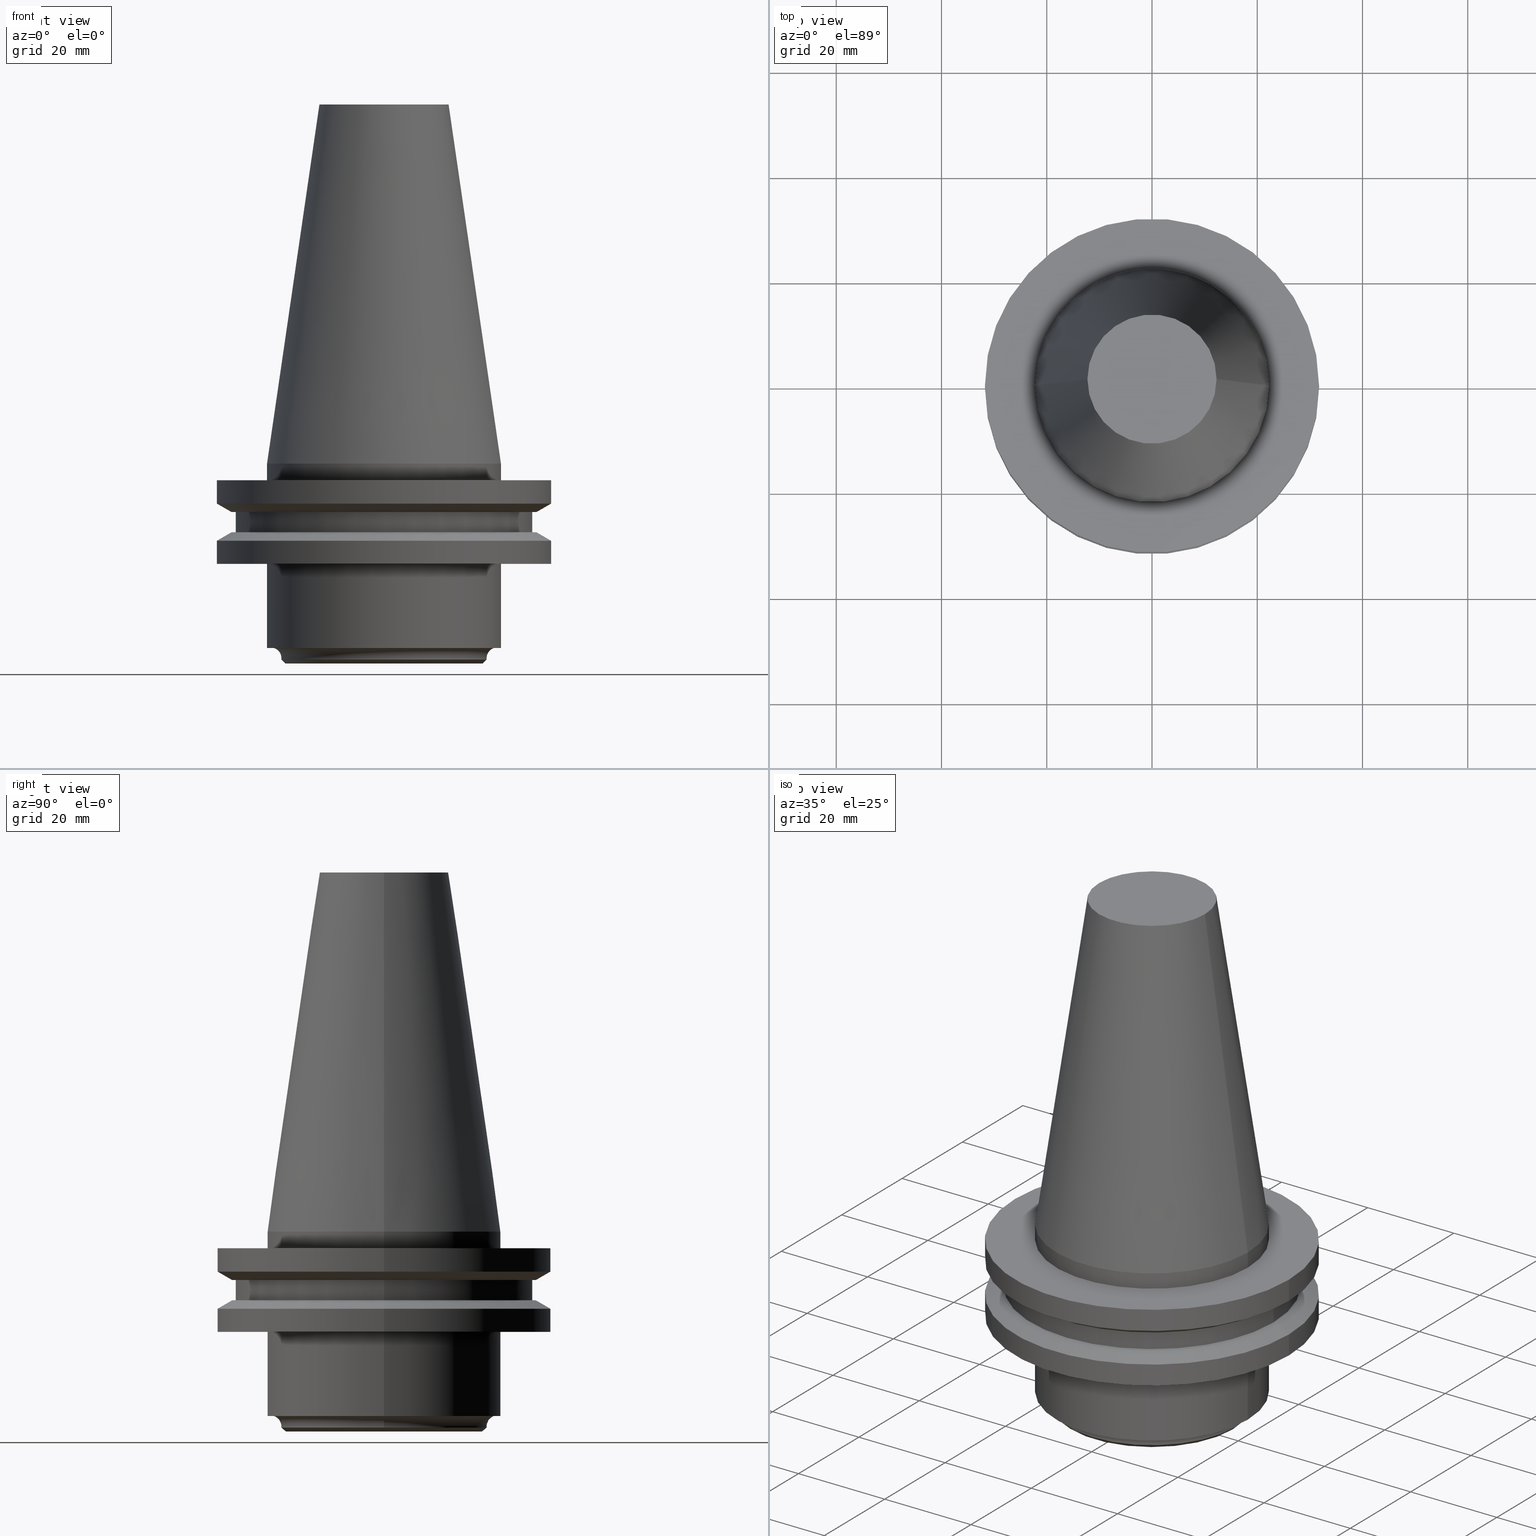
[diagram: canonical four-view strip — front | top / right | iso, engineering-drawing reading convention]
A machine part, canonical four-view strip (front | top / right | iso — engineering-drawing reading convention). The complete STEP part file that produces these views, byte-faithful:
ISO-10303-21;
HEADER;
FILE_DESCRIPTION (( 'STEP AP203' ),
    '1' );
FILE_NAME ('11_326_440.stp',
    '2022-03-07T22:19:01',
    ( '' ),
    ( '' ),
    'SwSTEP 2.0',
    'SolidWorks 2021',
    '' );
FILE_SCHEMA (( 'CONFIG_CONTROL_DESIGN' ));
ENDSEC;

DATA;
#1 = CARTESIAN_POINT ( 'NONE',  ( 0.000000000000000000, 0.000000000000000000, -9.205000000000005400 ) ) ;
#2 = ORIENTED_EDGE ( 'NONE', *, *, #641, .T. ) ;
#3 = DIRECTION ( 'NONE',  ( 1.000000000000000000, 0.000000000000000000, 0.000000000000000000 ) ) ;
#4 = AXIS2_PLACEMENT_3D ( 'NONE', #658, #340, #598 ) ;
#5 = FACE_OUTER_BOUND ( 'NONE', #678, .T. ) ;
#6 = ORIENTED_EDGE ( 'NONE', *, *, #641, .F. ) ;
#7 = SECURITY_CLASSIFICATION ( '', '', #748 ) ;
#8 = DIRECTION ( 'NONE',  ( -0.000000000000000000, -0.000000000000000000, 1.000000000000000000 ) ) ;
#9 = CARTESIAN_POINT ( 'NONE',  ( 0.000000000000000000, 0.000000000000000000, -9.205000000000005400 ) ) ;
#10 = EDGE_CURVE ( 'NONE', #809, #328, #818, .T. ) ;
#11 = ORIENTED_EDGE ( 'NONE', *, *, #524, .F. ) ;
#12 = APPLICATION_CONTEXT ( 'configuration controlled 3d designs of mechanical parts and assemblies' ) ;
#13 = CARTESIAN_POINT ( 'NONE',  ( 0.000000000000000000, 0.000000000000000000, -7.605276606597335842 ) ) ;
#14 = DIRECTION ( 'NONE',  ( 1.000000000000000000, 0.000000000000000000, 0.000000000000000000 ) ) ;
#15 = EDGE_LOOP ( 'NONE', ( #261, #74, #19, #707 ) ) ;
#16 = EDGE_LOOP ( 'NONE', ( #51, #804, #701, #640 ) ) ;
#17 = DIRECTION ( 'NONE',  ( -0.000000000000000000, -0.000000000000000000, 1.000000000000000000 ) ) ;
#18 = AXIS2_PLACEMENT_3D ( 'NONE', #421, #677, #223 ) ;
#19 = ORIENTED_EDGE ( 'NONE', *, *, #21, .T. ) ;
#20 = VECTOR ( 'NONE', #652, 1000.000000000000000 ) ;
#21 = EDGE_CURVE ( 'NONE', #490, #739, #482, .T. ) ;
#22 = DIRECTION ( 'NONE',  ( 1.000000000000000000, 0.000000000000000000, 0.000000000000000000 ) ) ;
#23 =( LENGTH_UNIT ( ) NAMED_UNIT ( * ) SI_UNIT ( .MILLI., .METRE. ) );
#24 = CARTESIAN_POINT ( 'NONE',  ( 0.000000000000000000, 0.000000000000000000, -36.94999999999999574 ) ) ;
#25 = PRODUCT_RELATED_PRODUCT_CATEGORY ( 'detail', '', ( #549 ) ) ;
#26 = DIRECTION ( 'NONE',  ( 1.000000000000000000, 0.000000000000000000, 0.000000000000000000 ) ) ;
#27 = ORIENTED_EDGE ( 'NONE', *, *, #319, .F. ) ;
#28 = VERTEX_POINT ( 'NONE', #278 ) ;
#29 = CARTESIAN_POINT ( 'NONE',  ( -31.74999999999999289, 3.888253587292845687E-15, -19.04999999999999716 ) ) ;
#30 = DIRECTION ( 'NONE',  ( -0.000000000000000000, -0.000000000000000000, 1.000000000000000000 ) ) ;
#31 = CARTESIAN_POINT ( 'NONE',  ( -18.75000000000000000, 2.296212748401287183E-15, -38.00000000000000000 ) ) ;
#32 = ORIENTED_EDGE ( 'NONE', *, *, #296, .F. ) ;
#33 = AXIS2_PLACEMENT_3D ( 'NONE', #451, #696, #3 ) ;
#34 = CARTESIAN_POINT ( 'NONE',  ( -28.97919780457007732, 3.548928183322474856E-15, -9.205000000000005400 ) ) ;
#35 = AXIS2_PLACEMENT_3D ( 'NONE', #225, #346, #290 ) ;
#36 = DIRECTION ( 'NONE',  ( -0.000000000000000000, -0.000000000000000000, 1.000000000000000000 ) ) ;
#37 = ADVANCED_FACE ( 'NONE', ( #41 ), #407, .T. ) ;
#38 = ORIENTED_EDGE ( 'NONE', *, *, #10, .F. ) ;
#39 = FACE_OUTER_BOUND ( 'NONE', #681, .T. ) ;
#40 = DIRECTION ( 'NONE',  ( -0.000000000000000000, -0.000000000000000000, 1.000000000000000000 ) ) ;
#41 = FACE_OUTER_BOUND ( 'NONE', #474, .T. ) ;
#42 = EDGE_LOOP ( 'NONE', ( #415, #545, #260, #322 ) ) ;
#43 = PERSON_AND_ORGANIZATION ( #186, #394 ) ;
#44 = CARTESIAN_POINT ( 'NONE',  ( 0.000000000000000000, 0.000000000000000000, -3.174999999999997158 ) ) ;
#45 = CONICAL_SURFACE ( 'NONE', #719, 18.75000000000000000, 0.7853981633974437271 ) ;
#46 = AXIS2_PLACEMENT_3D ( 'NONE', #181, #692, #14 ) ;
#47 = EDGE_LOOP ( 'NONE', ( #784, #547, #291, #315 ) ) ;
#48 = ADVANCED_FACE ( 'NONE', ( #793 ), #342, .F. ) ;
#49 = CIRCLE ( 'NONE', #775, 22.22500000000000142 ) ;
#50 = CARTESIAN_POINT ( 'NONE',  ( -31.75000000000000000, 3.888253587292846476E-15, -3.174999999999997158 ) ) ;
#51 = ORIENTED_EDGE ( 'NONE', *, *, #735, .F. ) ;
#52 = EDGE_CURVE ( 'NONE', #328, #809, #323, .T. ) ;
#53 = CARTESIAN_POINT ( 'NONE',  ( 0.000000000000000000, 31.75000000000000000, -3.174999999999993605 ) ) ;
#54 = APPROVAL_STATUS ( 'not_yet_approved' ) ;
#55 = CARTESIAN_POINT ( 'NONE',  ( 19.49999999999999289, 0.000000000000000000, -37.25000000000000000 ) ) ;
#56 = CC_DESIGN_APPROVAL ( #111, ( #433 ) ) ;
#57 = CARTESIAN_POINT ( 'NONE',  ( 0.000000000000000000, 0.000000000000000000, 68.25000000000000000 ) ) ;
#58 = EDGE_CURVE ( 'NONE', #490, #144, #420, .T. ) ;
#59 = VERTEX_POINT ( 'NONE', #347 ) ;
#60 = CARTESIAN_POINT ( 'NONE',  ( 0.000000000000000000, 0.000000000000000000, -14.65472339340266572 ) ) ;
#61 = DIRECTION ( 'NONE',  ( -0.000000000000000000, -0.000000000000000000, 1.000000000000000000 ) ) ;
#62 = DIRECTION ( 'NONE',  ( 1.000000000000000000, 0.000000000000000000, 0.000000000000000000 ) ) ;
#63 = DIRECTION ( 'NONE',  ( 1.000000000000000000, 0.000000000000000000, 0.000000000000000000 ) ) ;
#64 = ORIENTED_EDGE ( 'NONE', *, *, #105, .T. ) ;
#65 = AXIS2_PLACEMENT_3D ( 'NONE', #197, #317, #249 ) ;
#66 = DIRECTION ( 'NONE',  ( 0.000000000000000000, -0.000000000000000000, 1.000000000000000000 ) ) ;
#67 = EDGE_CURVE ( 'NONE', #425, #579, #738, .T. ) ;
#68 = DIRECTION ( 'NONE',  ( 0.000000000000000000, -0.000000000000000000, 1.000000000000000000 ) ) ;
#69 = VERTEX_POINT ( 'NONE', #101 ) ;
#70 = DIRECTION ( 'NONE',  ( -0.000000000000000000, -0.000000000000000000, 1.000000000000000000 ) ) ;
#71 = DIRECTION ( 'NONE',  ( 1.000000000000000000, 0.000000000000000000, 0.000000000000000000 ) ) ;
#72 = CARTESIAN_POINT ( 'NONE',  ( 0.000000000000000000, 0.000000000000000000, 68.25000000000000000 ) ) ;
#73 = ADVANCED_FACE ( 'NONE', ( #732 ), #537, .T. ) ;
#74 = ORIENTED_EDGE ( 'NONE', *, *, #442, .T. ) ;
#75 = ORIENTED_EDGE ( 'NONE', *, *, #759, .T. ) ;
#76 = CARTESIAN_POINT ( 'NONE',  ( -22.22500000000000142, 0.000000000000000000, 0.000000000000000000 ) ) ;
#77 = EDGE_CURVE ( 'NONE', #220, #650, #473, .T. ) ;
#78 = CARTESIAN_POINT ( 'NONE',  ( 0.000000000000000000, 0.000000000000000000, -37.25000000000000000 ) ) ;
#79 = ORIENTED_EDGE ( 'NONE', *, *, #816, .F. ) ;
#80 = EDGE_CURVE ( 'NONE', #495, #650, #657, .T. ) ;
#81 = LOCAL_TIME ( 16, 19, 1.000000000000000000, #375 ) ;
#82 = ORIENTED_EDGE ( 'NONE', *, *, #605, .T. ) ;
#83 = CARTESIAN_POINT ( 'NONE',  ( 18.75000000000000000, 0.000000000000000000, -38.00000000000000000 ) ) ;
#84 = APPLICATION_PROTOCOL_DEFINITION ( 'international standard', 'config_control_design', 1994, #466 ) ;
#85 = ORIENTED_EDGE ( 'NONE', *, *, #191, .F. ) ;
#86 = EDGE_LOOP ( 'NONE', ( #449, #362 ) ) ;
#87 = DIRECTION ( 'NONE',  ( 1.000000000000000000, 0.000000000000000000, 0.000000000000000000 ) ) ;
#88 = DIRECTION ( 'NONE',  ( -0.000000000000000000, -0.000000000000000000, 1.000000000000000000 ) ) ;
#89 = DIRECTION ( 'NONE',  ( 1.000000000000000000, 0.000000000000000000, 0.000000000000000000 ) ) ;
#90 = VERTEX_POINT ( 'NONE', #618 ) ;
#91 = FACE_OUTER_BOUND ( 'NONE', #436, .T. ) ;
#92 = LINE ( 'NONE', #294, #202 ) ;
#93 = AXIS2_PLACEMENT_3D ( 'NONE', #708, #281, #397 ) ;
#94 = EDGE_CURVE ( 'NONE', #361, #739, #594, .T. ) ;
#95 = DIRECTION ( 'NONE',  ( -0.000000000000000000, -0.000000000000000000, 1.000000000000000000 ) ) ;
#96 = VERTEX_POINT ( 'NONE', #218 ) ;
#97 = FACE_OUTER_BOUND ( 'NONE', #47, .T. ) ;
#98 = AXIS2_PLACEMENT_3D ( 'NONE', #713, #142, #62 ) ;
#99 = CARTESIAN_POINT ( 'NONE',  ( 28.97919780457007732, 0.000000000000000000, -9.205000000000005400 ) ) ;
#100 = CIRCLE ( 'NONE', #35, 31.74999999999999289 ) ;
#101 = CARTESIAN_POINT ( 'NONE',  ( -28.17999999999999972, 3.451054679997241634E-15, -13.05499999999999794 ) ) ;
#102 = ORIENTED_EDGE ( 'NONE', *, *, #442, .F. ) ;
#103 = DATE_TIME_ROLE ( 'classification_date' ) ;
#104 = EDGE_LOOP ( 'NONE', ( #411, #329, #386, #32 ) ) ;
#105 = EDGE_CURVE ( 'NONE', #645, #106, #606, .T. ) ;
#106 = VERTEX_POINT ( 'NONE', #351 ) ;
#107 = COORDINATED_UNIVERSAL_TIME_OFFSET ( 6, 0, .BEHIND. ) ;
#108 = AXIS2_PLACEMENT_3D ( 'NONE', #343, #208, #334 ) ;
#109 = CARTESIAN_POINT ( 'NONE',  ( 0.000000000000000000, 0.000000000000000000, 0.000000000000000000 ) ) ;
#110 = VECTOR ( 'NONE', #189, 1000.000000000000000 ) ;
#111 = APPROVAL ( #727, 'UNSPECIFIED' ) ;
#112 = ORIENTED_EDGE ( 'NONE', *, *, #132, .F. ) ;
#113 = CIRCLE ( 'NONE', #33, 12.27178102086201150 ) ;
#114 = CC_DESIGN_APPROVAL ( #231, ( #7 ) ) ;
#115 = FACE_BOUND ( 'NONE', #655, .T. ) ;
#116 = DIRECTION ( 'NONE',  ( -1.000000000000000000, 0.000000000000000000, -0.000000000000000000 ) ) ;
#117 = ORIENTED_EDGE ( 'NONE', *, *, #401, .F. ) ;
#118 = CALENDAR_DATE ( 2022, 7, 3 ) ;
#119 = DIRECTION ( 'NONE',  ( -1.000000000000000000, 0.000000000000000000, 0.000000000000000000 ) ) ;
#120 = EDGE_CURVE ( 'NONE', #280, #178, #406, .T. ) ;
#121 = AXIS2_PLACEMENT_3D ( 'NONE', #44, #36, #601 ) ;
#122 = LINE ( 'NONE', #129, #110 ) ;
#123 = PLANE ( 'NONE',  #381 ) ;
#124 = CARTESIAN_POINT ( 'NONE',  ( -22.22500000000000142, 2.721777511104992849E-15, -19.04999999999999716 ) ) ;
#125 = FACE_OUTER_BOUND ( 'NONE', #104, .T. ) ;
#126 = EDGE_CURVE ( 'NONE', #579, #207, #326, .T. ) ;
#127 = CARTESIAN_POINT ( 'NONE',  ( 0.000000000000000000, 22.22500000000000142, -35.04999999999999716 ) ) ;
#128 = DIRECTION ( 'NONE',  ( -0.000000000000000000, -0.000000000000000000, 1.000000000000000000 ) ) ;
#129 = CARTESIAN_POINT ( 'NONE',  ( -28.17999999999999972, 3.451054679997241634E-15, 68.25000000000000000 ) ) ;
#130 = EDGE_LOOP ( 'NONE', ( #560, #666, #306, #519 ) ) ;
#131 = AXIS2_PLACEMENT_3D ( 'NONE', #438, #518, #134 ) ;
#132 = EDGE_CURVE ( 'NONE', #470, #483, #285, .T. ) ;
#133 = CARTESIAN_POINT ( 'NONE',  ( 31.75000000000000000, 0.000000000000000000, -3.174999999999997158 ) ) ;
#134 = DIRECTION ( 'NONE',  ( 1.000000000000000000, 0.000000000000000000, 0.000000000000000000 ) ) ;
#135 = ORIENTED_EDGE ( 'NONE', *, *, #710, .F. ) ;
#136 = CIRCLE ( 'NONE', #761, 28.17999999999999972 ) ;
#137 = VERTEX_POINT ( 'NONE', #235 ) ;
#138 = CYLINDRICAL_SURFACE ( 'NONE', #93, 31.75000000000000000 ) ;
#139 = CARTESIAN_POINT ( 'NONE',  ( 19.49999999999999289, 0.000000000000000000, 0.000000000000000000 ) ) ;
#140 = ORIENTED_EDGE ( 'NONE', *, *, #338, .T. ) ;
#141 = DIRECTION ( 'NONE',  ( 1.000000000000000000, 0.000000000000000000, 0.000000000000000000 ) ) ;
#142 = DIRECTION ( 'NONE',  ( -0.000000000000000000, -0.000000000000000000, 1.000000000000000000 ) ) ;
#143 = EDGE_CURVE ( 'NONE', #373, #495, #324, .T. ) ;
#144 = VERTEX_POINT ( 'NONE', #320 ) ;
#145 = EDGE_LOOP ( 'NONE', ( #491, #79 ) ) ;
#146 = DIRECTION ( 'NONE',  ( 1.000000000000000000, 0.000000000000000000, 0.000000000000000000 ) ) ;
#147 = CIRCLE ( 'NONE', #4, 31.74999999999999289 ) ;
#148 = AXIS2_PLACEMENT_3D ( 'NONE', #580, #196, #427 ) ;
#149 = AXIS2_PLACEMENT_3D ( 'NONE', #413, #222, #357 ) ;
#150 = DIRECTION ( 'NONE',  ( -0.8660254037844389297, 1.060575238724907285E-16, 0.4999999999999995004 ) ) ;
#151 = CARTESIAN_POINT ( 'NONE',  ( 0.000000000000000000, 0.000000000000000000, 68.25000000000000000 ) ) ;
#152 = AXIS2_PLACEMENT_3D ( 'NONE', #632, #571, #825 ) ;
#153 = ORIENTED_EDGE ( 'NONE', *, *, #724, .F. ) ;
#154 = EDGE_CURVE ( 'NONE', #739, #361, #434, .T. ) ;
#155 = ORIENTED_EDGE ( 'NONE', *, *, #94, .T. ) ;
#156 = CARTESIAN_POINT ( 'NONE',  ( 0.000000000000000000, 0.000000000000000000, 68.25000000000000000 ) ) ;
#157 = DIRECTION ( 'NONE',  ( -0.000000000000000000, -0.000000000000000000, 1.000000000000000000 ) ) ;
#158 = DIRECTION ( 'NONE',  ( -0.000000000000000000, -0.000000000000000000, 1.000000000000000000 ) ) ;
#159 = ORIENTED_EDGE ( 'NONE', *, *, #52, .T. ) ;
#160 = FACE_OUTER_BOUND ( 'NONE', #679, .T. ) ;
#161 = DIRECTION ( 'NONE',  ( 1.000000000000000000, 0.000000000000000000, 0.000000000000000000 ) ) ;
#162 = COORDINATED_UNIVERSAL_TIME_OFFSET ( 6, 0, .BEHIND. ) ;
#163 = AXIS2_PLACEMENT_3D ( 'NONE', #595, #463, #790 ) ;
#164 = ORIENTED_EDGE ( 'NONE', *, *, #724, .T. ) ;
#165 = EDGE_LOOP ( 'NONE', ( #672, #523, #117, #170 ) ) ;
#166 = PRODUCT_DEFINITION_FORMATION_WITH_SPECIFIED_SOURCE ( 'ANY', '', #549, .NOT_KNOWN. ) ;
#167 = ADVANCED_FACE ( 'NONE', ( #765 ), #367, .F. ) ;
#168 = CARTESIAN_POINT ( 'NONE',  ( 22.22500000000000142, 0.000000000000000000, 68.25000000000000000 ) ) ;
#169 = CONICAL_SURFACE ( 'NONE', #266, 22.22500000000000142, 0.1448138465474119174 ) ;
#170 = ORIENTED_EDGE ( 'NONE', *, *, #747, .F. ) ;
#171 = COORDINATED_UNIVERSAL_TIME_OFFSET ( 6, 0, .BEHIND. ) ;
#172 = CARTESIAN_POINT ( 'NONE',  ( -31.75000000000000000, 3.888253587292846476E-15, 68.25000000000000000 ) ) ;
#173 = CC_DESIGN_DATE_AND_TIME_ASSIGNMENT ( #740, #621, ( #433 ) ) ;
#174 = ORIENTED_EDGE ( 'NONE', *, *, #191, .T. ) ;
#175 = LINE ( 'NONE', #172, #200 ) ;
#176 = VECTOR ( 'NONE', #382, 1000.000000000000000 ) ;
#177 = CYLINDRICAL_SURFACE ( 'NONE', #498, 31.75000000000000000 ) ;
#178 = VERTEX_POINT ( 'NONE', #575 ) ;
#179 = EDGE_CURVE ( 'NONE', #137, #620, #387, .T. ) ;
#180 = CALENDAR_DATE ( 2022, 7, 3 ) ;
#181 = CARTESIAN_POINT ( 'NONE',  ( 0.000000000000000000, 0.000000000000000000, 68.25000000000000000 ) ) ;
#182 = DIRECTION ( 'NONE',  ( 1.000000000000000000, 0.000000000000000000, 0.000000000000000000 ) ) ;
#183 = DIRECTION ( 'NONE',  ( 1.000000000000000000, 0.000000000000000000, 0.000000000000000000 ) ) ;
#184 = CARTESIAN_POINT ( 'NONE',  ( 0.000000000000000000, 0.000000000000000000, -35.04999999999999716 ) ) ;
#185 = AXIS2_PLACEMENT_3D ( 'NONE', #24, #726, #349 ) ;
#186 = PERSON ( 'UNSPECIFIED', 'UNSPECIFIED', 'UNSPECIFIED', ('UNSPECIFIED'), ('UNSPECIFIED'), ('UNSPECIFIED') ) ;
#187 = AXIS2_PLACEMENT_3D ( 'NONE', #477, #414, #550 ) ;
#188 = DIRECTION ( 'NONE',  ( -0.000000000000000000, -0.000000000000000000, 1.000000000000000000 ) ) ;
#189 = DIRECTION ( 'NONE',  ( -0.000000000000000000, -0.000000000000000000, 1.000000000000000000 ) ) ;
#190 = CIRCLE ( 'NONE', #408, 28.97919780457008088 ) ;
#191 = EDGE_CURVE ( 'NONE', #521, #203, #113, .T. ) ;
#192 = CARTESIAN_POINT ( 'NONE',  ( 18.75000000000000000, 0.000000000000000000, -38.00000000000000000 ) ) ;
#193 = CARTESIAN_POINT ( 'NONE',  ( 22.22500000000000142, 0.000000000000000000, -19.04999999999999716 ) ) ;
#194 = VERTEX_POINT ( 'NONE', #133 ) ;
#195 = CC_DESIGN_PERSON_AND_ORGANIZATION_ASSIGNMENT ( #718, #670, ( #549 ) ) ;
#196 = DIRECTION ( 'NONE',  ( -0.000000000000000000, -0.000000000000000000, 1.000000000000000000 ) ) ;
#197 = CARTESIAN_POINT ( 'NONE',  ( 0.000000000000000000, 0.000000000000000000, -38.00000000000000000 ) ) ;
#198 = ORIENTED_EDGE ( 'NONE', *, *, #493, .F. ) ;
#199 = DIRECTION ( 'NONE',  ( 0.1443082272672999711, 1.767266086135276757E-17, -0.9895327864921755756 ) ) ;
#200 = VECTOR ( 'NONE', #637, 1000.000000000000000 ) ;
#201 = ORIENTED_EDGE ( 'NONE', *, *, #80, .F. ) ;
#202 = VECTOR ( 'NONE', #548, 1000.000000000000000 ) ;
#203 = VERTEX_POINT ( 'NONE', #384 ) ;
#204 = DIRECTION ( 'NONE',  ( 1.000000000000000000, 0.000000000000000000, 0.000000000000000000 ) ) ;
#205 = ADVANCED_FACE ( 'NONE', ( #745 ), #497, .T. ) ;
#206 = FACE_BOUND ( 'NONE', #86, .T. ) ;
#207 = VERTEX_POINT ( 'NONE', #124 ) ;
#208 = DIRECTION ( 'NONE',  ( -0.000000000000000000, -0.000000000000000000, 1.000000000000000000 ) ) ;
#209 = VERTEX_POINT ( 'NONE', #50 ) ;
#210 = CARTESIAN_POINT ( 'NONE',  ( 22.22500000000000142, 2.721777511104992849E-15, 0.000000000000000000 ) ) ;
#211 = CIRCLE ( 'NONE', #65, 18.75000000000000000 ) ;
#212 =( NAMED_UNIT ( * ) SI_UNIT ( $, .STERADIAN. ) SOLID_ANGLE_UNIT ( ) );
#213 = DIRECTION ( 'NONE',  ( -0.000000000000000000, -0.000000000000000000, 1.000000000000000000 ) ) ;
#214 = EDGE_CURVE ( 'NONE', #333, #650, #175, .T. ) ;
#215 = CC_DESIGN_SECURITY_CLASSIFICATION ( #7, ( #166 ) ) ;
#216 = CARTESIAN_POINT ( 'NONE',  ( -22.22500000000000142, 0.000000000000000000, 0.000000000000000000 ) ) ;
#217 = CARTESIAN_POINT ( 'NONE',  ( 0.000000000000000000, 0.000000000000000000, 0.000000000000000000 ) ) ;
#218 = CARTESIAN_POINT ( 'NONE',  ( 28.97919780457007732, 0.000000000000000000, -9.205000000000005400 ) ) ;
#219 = EDGE_CURVE ( 'NONE', #207, #579, #311, .T. ) ;
#220 = VERTEX_POINT ( 'NONE', #682 ) ;
#221 = DIRECTION ( 'NONE',  ( 1.000000000000000000, 0.000000000000000000, 0.000000000000000000 ) ) ;
#222 = DIRECTION ( 'NONE',  ( 0.000000000000000000, -1.000000000000000000, 0.000000000000000000 ) ) ;
#223 = DIRECTION ( 'NONE',  ( 1.000000000000000000, 0.000000000000000000, 0.000000000000000000 ) ) ;
#224 = ORIENTED_EDGE ( 'NONE', *, *, #80, .T. ) ;
#225 = CARTESIAN_POINT ( 'NONE',  ( 0.000000000000000000, 0.000000000000000000, -19.04999999999999716 ) ) ;
#226 = VECTOR ( 'NONE', #475, 1000.000000000000114 ) ;
#227 = DIRECTION ( 'NONE',  ( -0.000000000000000000, -0.000000000000000000, 1.000000000000000000 ) ) ;
#228 = EDGE_LOOP ( 'NONE', ( #75, #64, #297, #462 ) ) ;
#229 = APPROVAL_PERSON_ORGANIZATION ( #405, #111, #481 ) ;
#230 = COORDINATED_UNIVERSAL_TIME_OFFSET ( 6, 0, .BEHIND. ) ;
#231 = APPROVAL ( #54, 'UNSPECIFIED' ) ;
#232 = CARTESIAN_POINT ( 'NONE',  ( 0.000000000000000000, 0.000000000000000000, -14.65472339340266572 ) ) ;
#233 = ORIENTED_EDGE ( 'NONE', *, *, #754, .T. ) ;
#234 = CALENDAR_DATE ( 2022, 7, 3 ) ;
#235 = CARTESIAN_POINT ( 'NONE',  ( 28.17999999999999972, 0.000000000000000000, -13.05499999999999794 ) ) ;
#236 = EDGE_LOOP ( 'NONE', ( #82, #456 ) ) ;
#237 = ADVANCED_BREP_SHAPE_REPRESENTATION ( '11_326_440', ( #585, #327 ), #597 ) ;
#238 = APPROVAL_STATUS ( 'not_yet_approved' ) ;
#239 = CIRCLE ( 'NONE', #788, 12.27178102086201150 ) ;
#240 = DIRECTION ( 'NONE',  ( 1.000000000000000000, 0.000000000000000000, 0.000000000000000000 ) ) ;
#241 = EDGE_CURVE ( 'NONE', #194, #209, #568, .T. ) ;
#242 = APPROVAL_DATE_TIME ( #488, #231 ) ;
#243 = VECTOR ( 'NONE', #460, 1000.000000000000000 ) ;
#244 = DIRECTION ( 'NONE',  ( -0.000000000000000000, -0.000000000000000000, 1.000000000000000000 ) ) ;
#245 = FACE_OUTER_BOUND ( 'NONE', #165, .T. ) ;
#246 = DIRECTION ( 'NONE',  ( -0.000000000000000000, -0.000000000000000000, 1.000000000000000000 ) ) ;
#247 = PLANE ( 'NONE',  #251 ) ;
#248 = ADVANCED_FACE ( 'NONE', ( #492 ), #431, .T. ) ;
#249 = DIRECTION ( 'NONE',  ( 1.000000000000000000, 0.000000000000000000, 0.000000000000000000 ) ) ;
#250 = CARTESIAN_POINT ( 'NONE',  ( 0.000000000000000000, 0.000000000000000000, -13.05499999999999794 ) ) ;
#251 = AXIS2_PLACEMENT_3D ( 'NONE', #127, #66, #534 ) ;
#252 = AXIS2_PLACEMENT_3D ( 'NONE', #502, #758, #755 ) ;
#253 = CARTESIAN_POINT ( 'NONE',  ( 0.000000000000000000, 0.000000000000000000, -3.174999999999997158 ) ) ;
#254 = CARTESIAN_POINT ( 'NONE',  ( 0.000000000000000000, 0.000000000000000000, -14.65472339340266572 ) ) ;
#255 = AXIS2_PLACEMENT_3D ( 'NONE', #151, #30, #418 ) ;
#256 = EDGE_LOOP ( 'NONE', ( #423, #624, #525, #602 ) ) ;
#257 = DIRECTION ( 'NONE',  ( 1.000000000000000000, 0.000000000000000000, 0.000000000000000000 ) ) ;
#258 = CARTESIAN_POINT ( 'NONE',  ( -19.49999999999999289, 2.388061258337338150E-15, 0.000000000000000000 ) ) ;
#259 = DIRECTION ( 'NONE',  ( -0.000000000000000000, -0.000000000000000000, 1.000000000000000000 ) ) ;
#260 = ORIENTED_EDGE ( 'NONE', *, *, #783, .T. ) ;
#261 = ORIENTED_EDGE ( 'NONE', *, *, #754, .F. ) ;
#262 = DIRECTION ( 'NONE',  ( -0.000000000000000000, -0.000000000000000000, 1.000000000000000000 ) ) ;
#263 = ADVANCED_FACE ( 'NONE', ( #115, #370 ), #630, .F. ) ;
#264 = CYLINDRICAL_SURFACE ( 'NONE', #803, 22.22500000000000142 ) ;
#265 = CLOSED_SHELL ( 'NONE', ( #283, #619, #450, #359, #307, #541, #465, #205, #687, #37, #576, #461, #489, #277, #827, #583, #593, #552, #661, #720, #636, #332, #248, #263, #698, #167, #73, #478, #48 ) ) ;
#266 = AXIS2_PLACEMENT_3D ( 'NONE', #700, #376, #513 ) ;
#267 = VERTEX_POINT ( 'NONE', #192 ) ;
#268 = LOCAL_TIME ( 16, 19, 1.000000000000000000, #171 ) ;
#269 = ORIENTED_EDGE ( 'NONE', *, *, #811, .F. ) ;
#270 = CARTESIAN_POINT ( 'NONE',  ( 28.97919780457008088, 3.718590885307660666E-15, -13.05499999999999794 ) ) ;
#271 = DIRECTION ( 'NONE',  ( 0.000000000000000000, 0.000000000000000000, 1.000000000000000000 ) ) ;
#272 = CYLINDRICAL_SURFACE ( 'NONE', #337, 19.49999999999999289 ) ;
#273 = EDGE_LOOP ( 'NONE', ( #159, #683 ) ) ;
#274 = ORIENTED_EDGE ( 'NONE', *, *, #154, .F. ) ;
#275 = DIRECTION ( 'NONE',  ( -0.000000000000000000, -0.000000000000000000, 1.000000000000000000 ) ) ;
#276 = CARTESIAN_POINT ( 'NONE',  ( -20.87550020016014329, 2.556511450072605118E-15, -35.04999999999999716 ) ) ;
#277 = ADVANCED_FACE ( 'NONE', ( #561, #815 ), #247, .F. ) ;
#278 = CARTESIAN_POINT ( 'NONE',  ( -28.97919780457007732, 3.718590885307660666E-15, -9.205000000000005400 ) ) ;
#279 = CIRCLE ( 'NONE', #377, 19.49999999999999289 ) ;
#280 = VERTEX_POINT ( 'NONE', #457 ) ;
#281 = DIRECTION ( 'NONE',  ( -0.000000000000000000, -0.000000000000000000, 1.000000000000000000 ) ) ;
#282 = CIRCLE ( 'NONE', #364, 28.97919780457007732 ) ;
#283 = ADVANCED_FACE ( 'NONE', ( #653 ), #45, .T. ) ;
#284 = DIRECTION ( 'NONE',  ( -0.7071067811865441310, 8.659560562354892183E-17, 0.7071067811865507924 ) ) ;
#285 = CIRCLE ( 'NONE', #736, 31.75000000000000000 ) ;
#286 = AXIS2_PLACEMENT_3D ( 'NONE', #341, #88, #26 ) ;
#287 = ORIENTED_EDGE ( 'NONE', *, *, #58, .T. ) ;
#288 = CARTESIAN_POINT ( 'NONE',  ( 0.000000000000000000, 0.000000000000000000, -38.00000000000000000 ) ) ;
#289 = CARTESIAN_POINT ( 'NONE',  ( 28.17999999999999972, 0.000000000000000000, -9.204999999999991189 ) ) ;
#290 = DIRECTION ( 'NONE',  ( 1.000000000000000000, 0.000000000000000000, 0.000000000000000000 ) ) ;
#291 = ORIENTED_EDGE ( 'NONE', *, *, #605, .F. ) ;
#292 = EDGE_LOOP ( 'NONE', ( #479, #429 ) ) ;
#293 = DIRECTION ( 'NONE',  ( 0.000000000000000000, -0.000000000000000000, 1.000000000000000000 ) ) ;
#294 = CARTESIAN_POINT ( 'NONE',  ( -31.75000000000000000, 3.888253587292846476E-15, 68.25000000000000000 ) ) ;
#295 = ORIENTED_EDGE ( 'NONE', *, *, #676, .F. ) ;
#296 = EDGE_CURVE ( 'NONE', #106, #515, #703, .T. ) ;
#297 = ORIENTED_EDGE ( 'NONE', *, *, #344, .F. ) ;
#298 = CALENDAR_DATE ( 2022, 7, 3 ) ;
#299 = AXIS2_PLACEMENT_3D ( 'NONE', #616, #543, #730 ) ;
#300 = DIRECTION ( 'NONE',  ( -0.000000000000000000, -0.000000000000000000, 1.000000000000000000 ) ) ;
#301 = AXIS2_PLACEMENT_3D ( 'NONE', #232, #227, #358 ) ;
#302 = EDGE_LOOP ( 'NONE', ( #395, #135, #694, #773 ) ) ;
#303 = AXIS2_PLACEMENT_3D ( 'NONE', #314, #246, #503 ) ;
#304 = DIRECTION ( 'NONE',  ( 1.000000000000000000, 0.000000000000000000, 0.000000000000000000 ) ) ;
#305 = CARTESIAN_POINT ( 'NONE',  ( 0.000000000000000000, 28.17999999999999972, -13.05499999999999794 ) ) ;
#306 = ORIENTED_EDGE ( 'NONE', *, *, #799, .T. ) ;
#307 = ADVANCED_FACE ( 'NONE', ( #777 ), #138, .T. ) ;
#308 = DIRECTION ( 'NONE',  ( 0.000000000000000000, 0.000000000000000000, -1.000000000000000000 ) ) ;
#309 = VECTOR ( 'NONE', #712, 1000.000000000000000 ) ;
#310 = FACE_OUTER_BOUND ( 'NONE', #15, .T. ) ;
#311 = CIRCLE ( 'NONE', #352, 22.22500000000000142 ) ;
#312 = AXIS2_PLACEMENT_3D ( 'NONE', #820, #244, #182 ) ;
#313 = DIRECTION ( 'NONE',  ( -0.000000000000000000, -0.000000000000000000, 1.000000000000000000 ) ) ;
#314 = CARTESIAN_POINT ( 'NONE',  ( 0.000000000000000000, 0.000000000000000000, 68.25000000000000000 ) ) ;
#315 = ORIENTED_EDGE ( 'NONE', *, *, #179, .F. ) ;
#316 = EDGE_CURVE ( 'NONE', #521, #361, #667, .T. ) ;
#317 = DIRECTION ( 'NONE',  ( -0.000000000000000000, -0.000000000000000000, 1.000000000000000000 ) ) ;
#318 = CARTESIAN_POINT ( 'NONE',  ( 0.000000000000000000, 0.000000000000000000, 68.25000000000000000 ) ) ;
#319 = EDGE_CURVE ( 'NONE', #425, #360, #733, .T. ) ;
#320 = CARTESIAN_POINT ( 'NONE',  ( -22.22500000000000142, 2.721777511104992849E-15, -3.174999999999997158 ) ) ;
#321 = PLANE ( 'NONE',  #252 ) ;
#322 = ORIENTED_EDGE ( 'NONE', *, *, #768, .F. ) ;
#323 = CIRCLE ( 'NONE', #626, 20.87550020016014685 ) ;
#324 = LINE ( 'NONE', #522, #722 ) ;
#325 = DIRECTION ( 'NONE',  ( 1.000000000000000000, 0.000000000000000000, 0.000000000000000000 ) ) ;
#326 = CIRCLE ( 'NONE', #556, 22.22500000000000142 ) ;
#327 = AXIS2_PLACEMENT_3D ( 'NONE', #217, #271, #731 ) ;
#328 = VERTEX_POINT ( 'NONE', #404 ) ;
#329 = ORIENTED_EDGE ( 'NONE', *, *, #524, .T. ) ;
#330 = DIRECTION ( 'NONE',  ( 0.000000000000000000, 0.000000000000000000, -1.000000000000000000 ) ) ;
#331 = FACE_OUTER_BOUND ( 'NONE', #706, .T. ) ;
#332 = ADVANCED_FACE ( 'NONE', ( #399 ), #468, .T. ) ;
#333 = VERTEX_POINT ( 'NONE', #29 ) ;
#334 = DIRECTION ( 'NONE',  ( 1.000000000000000000, 0.000000000000000000, 0.000000000000000000 ) ) ;
#335 = LINE ( 'NONE', #83, #226 ) ;
#336 = EDGE_LOOP ( 'NONE', ( #608, #164, #767, #586 ) ) ;
#337 = AXIS2_PLACEMENT_3D ( 'NONE', #669, #350, #161 ) ;
#338 = EDGE_CURVE ( 'NONE', #809, #280, #643, .T. ) ;
#339 = ORIENTED_EDGE ( 'NONE', *, *, #768, .T. ) ;
#340 = DIRECTION ( 'NONE',  ( -0.000000000000000000, -0.000000000000000000, 1.000000000000000000 ) ) ;
#341 = CARTESIAN_POINT ( 'NONE',  ( 0.000000000000000000, 0.000000000000000000, -38.00000000000000000 ) ) ;
#342 = PLANE ( 'NONE',  #379 ) ;
#343 = CARTESIAN_POINT ( 'NONE',  ( 0.000000000000000000, 0.000000000000000000, -9.205000000000005400 ) ) ;
#344 = EDGE_CURVE ( 'NONE', #515, #106, #279, .T. ) ;
#345 = CARTESIAN_POINT ( 'NONE',  ( -31.75000000000000000, 3.888253587292846476E-15, -14.65472339340266572 ) ) ;
#346 = DIRECTION ( 'NONE',  ( -0.000000000000000000, -0.000000000000000000, 1.000000000000000000 ) ) ;
#347 = CARTESIAN_POINT ( 'NONE',  ( -28.17999999999999972, 3.451054679997241634E-15, -9.204999999999991189 ) ) ;
#348 = ORIENTED_EDGE ( 'NONE', *, *, #811, .T. ) ;
#349 = DIRECTION ( 'NONE',  ( 1.000000000000000000, 0.000000000000000000, 0.000000000000000000 ) ) ;
#350 = DIRECTION ( 'NONE',  ( -0.000000000000000000, -0.000000000000000000, 1.000000000000000000 ) ) ;
#351 = CARTESIAN_POINT ( 'NONE',  ( -19.49999999999999289, 2.388061258337338150E-15, -37.25000000000000000 ) ) ;
#352 = AXIS2_PLACEMENT_3D ( 'NONE', #365, #61, #559 ) ;
#353 = CIRCLE ( 'NONE', #98, 28.17999999999999972 ) ;
#354 = ORIENTED_EDGE ( 'NONE', *, *, #316, .T. ) ;
#355 = CYLINDRICAL_SURFACE ( 'NONE', #46, 28.17999999999999972 ) ;
#356 = CARTESIAN_POINT ( 'NONE',  ( 0.000000000000000000, 28.97919780457007732, -9.204999999999996518 ) ) ;
#357 = DIRECTION ( 'NONE',  ( 0.000000000000000000, 0.000000000000000000, -1.000000000000000000 ) ) ;
#358 = DIRECTION ( 'NONE',  ( 1.000000000000000000, 0.000000000000000000, 0.000000000000000000 ) ) ;
#359 = ADVANCED_FACE ( 'NONE', ( #91 ), #264, .T. ) ;
#360 = VERTEX_POINT ( 'NONE', #781 ) ;
#361 = VERTEX_POINT ( 'NONE', #216 ) ;
#362 = ORIENTED_EDGE ( 'NONE', *, *, #668, .F. ) ;
#363 = AXIS2_PLACEMENT_3D ( 'NONE', #78, #529, #87 ) ;
#364 = AXIS2_PLACEMENT_3D ( 'NONE', #9, #259, #183 ) ;
#365 = CARTESIAN_POINT ( 'NONE',  ( 0.000000000000000000, 0.000000000000000000, -19.04999999999999716 ) ) ;
#366 = ORIENTED_EDGE ( 'NONE', *, *, #58, .F. ) ;
#367 = TOROIDAL_SURFACE ( 'NONE', #148, 21.50000000000000000, 2.000000000000003997 ) ;
#368 = LOCAL_TIME ( 16, 19, 1.000000000000000000, #162 ) ;
#369 = EDGE_CURVE ( 'NONE', #267, #515, #335, .T. ) ;
#370 = FACE_OUTER_BOUND ( 'NONE', #292, .T. ) ;
#371 = EDGE_CURVE ( 'NONE', #470, #194, #459, .T. ) ;
#372 = DIRECTION ( 'NONE',  ( 1.000000000000000000, 0.000000000000000000, 0.000000000000000000 ) ) ;
#373 = VERTEX_POINT ( 'NONE', #270 ) ;
#374 = CIRCLE ( 'NONE', #152, 28.17999999999999972 ) ;
#375 = COORDINATED_UNIVERSAL_TIME_OFFSET ( 6, 0, .BEHIND. ) ;
#376 = DIRECTION ( 'NONE',  ( 0.000000000000000000, 0.000000000000000000, -1.000000000000000000 ) ) ;
#377 = AXIS2_PLACEMENT_3D ( 'NONE', #591, #17, #204 ) ;
#378 = EDGE_CURVE ( 'NONE', #203, #739, #603, .T. ) ;
#379 = AXIS2_PLACEMENT_3D ( 'NONE', #622, #741, #410 ) ;
#380 = AXIS2_PLACEMENT_3D ( 'NONE', #390, #330, #504 ) ;
#381 = AXIS2_PLACEMENT_3D ( 'NONE', #305, #494, #116 ) ;
#382 = DIRECTION ( 'NONE',  ( -0.000000000000000000, -0.000000000000000000, 1.000000000000000000 ) ) ;
#383 = CC_DESIGN_DATE_AND_TIME_ASSIGNMENT ( #553, #103, ( #7 ) ) ;
#384 = CARTESIAN_POINT ( 'NONE',  ( 12.27178102086201150, 2.112318622904291439E-15, 68.25000000000000000 ) ) ;
#385 = FACE_OUTER_BOUND ( 'NONE', #776, .T. ) ;
#386 = ORIENTED_EDGE ( 'NONE', *, *, #369, .T. ) ;
#387 = LINE ( 'NONE', #446, #392 ) ;
#388 = FACE_BOUND ( 'NONE', #646, .T. ) ;
#389 = ORIENTED_EDGE ( 'NONE', *, *, #750, .F. ) ;
#390 = CARTESIAN_POINT ( 'NONE',  ( 0.000000000000000000, 0.000000000000000000, -14.65472339340266572 ) ) ;
#391 = EDGE_CURVE ( 'NONE', #90, #333, #147, .T. ) ;
#392 = VECTOR ( 'NONE', #702, 1000.000000000000000 ) ;
#393 = FACE_OUTER_BOUND ( 'NONE', #145, .T. ) ;
#394 = ORGANIZATION ( 'UNSPECIFIED', 'UNSPECIFIED', '' ) ;
#395 = ORIENTED_EDGE ( 'NONE', *, *, #143, .F. ) ;
#396 = EDGE_LOOP ( 'NONE', ( #814, #11 ) ) ;
#397 = DIRECTION ( 'NONE',  ( 1.000000000000000000, 0.000000000000000000, 0.000000000000000000 ) ) ;
#398 = ORIENTED_EDGE ( 'NONE', *, *, #126, .F. ) ;
#399 = FACE_OUTER_BOUND ( 'NONE', #42, .T. ) ;
#400 = EDGE_LOOP ( 'NONE', ( #794, #753, #201, #592 ) ) ;
#401 = EDGE_CURVE ( 'NONE', #178, #280, #443, .T. ) ;
#402 = VECTOR ( 'NONE', #716, 999.9999999999998863 ) ;
#403 = ORIENTED_EDGE ( 'NONE', *, *, #668, .T. ) ;
#404 = CARTESIAN_POINT ( 'NONE',  ( 20.87550020016014329, 0.000000000000000000, -35.04999999999999716 ) ) ;
#405 = PERSON_AND_ORGANIZATION ( #186, #394 ) ;
#406 = CIRCLE ( 'NONE', #806, 19.49999999999999289 ) ;
#407 = CYLINDRICAL_SURFACE ( 'NONE', #18, 22.22500000000000142 ) ;
#408 = AXIS2_PLACEMENT_3D ( 'NONE', #717, #796, #654 ) ;
#409 = CARTESIAN_POINT ( 'NONE',  ( 0.000000000000000000, 0.000000000000000000, -3.174999999999997158 ) ) ;
#410 = DIRECTION ( 'NONE',  ( 1.000000000000000000, 0.000000000000000000, 0.000000000000000000 ) ) ;
#411 = ORIENTED_EDGE ( 'NONE', *, *, #105, .F. ) ;
#412 = CARTESIAN_POINT ( 'NONE',  ( 0.000000000000000000, 0.000000000000000000, 68.25000000000000000 ) ) ;
#413 = CARTESIAN_POINT ( 'NONE',  ( 21.50000000000000000, 0.000000000000000000, -36.94999999999999574 ) ) ;
#414 = DIRECTION ( 'NONE',  ( -0.000000000000000000, -0.000000000000000000, 1.000000000000000000 ) ) ;
#415 = ORIENTED_EDGE ( 'NONE', *, *, #428, .F. ) ;
#416 = DIRECTION ( 'NONE',  ( 0.000000000000000000, 0.000000000000000000, -1.000000000000000000 ) ) ;
#417 = CIRCLE ( 'NONE', #656, 22.22500000000000142 ) ;
#418 = DIRECTION ( 'NONE',  ( 1.000000000000000000, 0.000000000000000000, 0.000000000000000000 ) ) ;
#419 = EDGE_CURVE ( 'NONE', #203, #521, #239, .T. ) ;
#420 = CIRCLE ( 'NONE', #121, 22.22500000000000142 ) ;
#421 = CARTESIAN_POINT ( 'NONE',  ( 0.000000000000000000, 0.000000000000000000, 68.25000000000000000 ) ) ;
#422 = AXIS2_PLACEMENT_3D ( 'NONE', #797, #157, #600 ) ;
#423 = ORIENTED_EDGE ( 'NONE', *, *, #214, .F. ) ;
#424 = CARTESIAN_POINT ( 'NONE',  ( -31.75000000000000000, 0.000000000000000000, -14.65472339340266572 ) ) ;
#425 = VERTEX_POINT ( 'NONE', #609 ) ;
#426 = SHAPE_DEFINITION_REPRESENTATION ( #714, #237 ) ;
#427 = DIRECTION ( 'NONE',  ( 1.000000000000000000, 0.000000000000000000, 0.000000000000000000 ) ) ;
#428 = EDGE_CURVE ( 'NONE', #28, #483, #721, .T. ) ;
#429 = ORIENTED_EDGE ( 'NONE', *, *, #676, .T. ) ;
#430 = PERSON_AND_ORGANIZATION_ROLE ( 'classification_officer' ) ;
#431 = CYLINDRICAL_SURFACE ( 'NONE', #772, 31.75000000000000000 ) ;
#432 = DIRECTION ( 'NONE',  ( -0.000000000000000000, -0.000000000000000000, 1.000000000000000000 ) ) ;
#433 = PRODUCT_DEFINITION ( 'UNKNOWN', '', #166, #562 ) ;
#434 = CIRCLE ( 'NONE', #509, 22.22500000000000142 ) ;
#435 = PERSON_AND_ORGANIZATION ( #186, #394 ) ;
#436 = EDGE_LOOP ( 'NONE', ( #287, #233, #274, #779 ) ) ;
#437 = PERSON_AND_ORGANIZATION_ROLE ( 'creator' ) ;
#438 = CARTESIAN_POINT ( 'NONE',  ( 0.000000000000000000, 0.000000000000000000, -38.00000000000000000 ) ) ;
#439 = FACE_OUTER_BOUND ( 'NONE', #615, .T. ) ;
#440 = AXIS2_PLACEMENT_3D ( 'NONE', #644, #68, #325 ) ;
#441 = CARTESIAN_POINT ( 'NONE',  ( 31.75000000000000000, 0.000000000000000000, -14.65472339340266572 ) ) ;
#442 = EDGE_CURVE ( 'NONE', #144, #490, #417, .T. ) ;
#443 = CIRCLE ( 'NONE', #185, 19.49999999999999289 ) ;
#444 = DIRECTION ( 'NONE',  ( 0.8660254037844387076, 1.060575238724906915E-16, -0.4999999999999998890 ) ) ;
#445 = CARTESIAN_POINT ( 'NONE',  ( -31.75000000000000000, 3.888253587292846476E-15, -7.605276606597335842 ) ) ;
#446 = CARTESIAN_POINT ( 'NONE',  ( 28.17999999999999972, 0.000000000000000000, 68.25000000000000000 ) ) ;
#447 = DIRECTION ( 'NONE',  ( 1.000000000000000000, 0.000000000000000000, 0.000000000000000000 ) ) ;
#448 = AXIS2_PLACEMENT_3D ( 'NONE', #254, #766, #119 ) ;
#449 = ORIENTED_EDGE ( 'NONE', *, *, #693, .F. ) ;
#450 = ADVANCED_FACE ( 'NONE', ( #39 ), #454, .F. ) ;
#451 = CARTESIAN_POINT ( 'NONE',  ( 0.000000000000000000, 0.000000000000000000, 68.25000000000000000 ) ) ;
#452 = CYLINDRICAL_SURFACE ( 'NONE', #607, 31.75000000000000000 ) ;
#453 = EDGE_LOOP ( 'NONE', ( #660, #348, #671, #635 ) ) ;
#454 = TOROIDAL_SURFACE ( 'NONE', #299, 21.50000000000000000, 2.000000000000003997 ) ;
#455 = AXIS2_PLACEMENT_3D ( 'NONE', #798, #808, #802 ) ;
#456 = ORIENTED_EDGE ( 'NONE', *, *, #750, .T. ) ;
#457 = CARTESIAN_POINT ( 'NONE',  ( -19.49999999999999289, 2.472286354204971437E-15, -36.94999999999999574 ) ) ;
#458 = CIRCLE ( 'NONE', #286, 18.75000000000000000 ) ;
#459 = LINE ( 'NONE', #770, #309 ) ;
#460 = DIRECTION ( 'NONE',  ( -0.000000000000000000, -0.000000000000000000, 1.000000000000000000 ) ) ;
#461 = ADVANCED_FACE ( 'NONE', ( #160 ), #469, .T. ) ;
#462 = ORIENTED_EDGE ( 'NONE', *, *, #369, .F. ) ;
#463 = DIRECTION ( 'NONE',  ( 1.224646799147353207E-16, 1.000000000000000000, 0.000000000000000000 ) ) ;
#464 = APPROVAL_DATE_TIME ( #782, #111 ) ;
#465 = ADVANCED_FACE ( 'NONE', ( #97 ), #355, .T. ) ;
#466 = APPLICATION_CONTEXT ( 'configuration controlled 3d designs of mechanical parts and assemblies' ) ;
#467 = ORIENTED_EDGE ( 'NONE', *, *, #316, .F. ) ;
#468 = CONICAL_SURFACE ( 'NONE', #108, 28.97919780457007732, 1.047197551196598297 ) ;
#469 = CONICAL_SURFACE ( 'NONE', #564, 22.22500000000000142, 0.1448138465474119174 ) ;
#470 = VERTEX_POINT ( 'NONE', #697 ) ;
#471 = DIRECTION ( 'NONE',  ( 1.000000000000000000, 0.000000000000000000, 0.000000000000000000 ) ) ;
#472 = AXIS2_PLACEMENT_3D ( 'NONE', #728, #95, #723 ) ;
#473 = LINE ( 'NONE', #424, #554 ) ;
#474 = EDGE_LOOP ( 'NONE', ( #533, #572, #398, #769 ) ) ;
#475 = DIRECTION ( 'NONE',  ( 0.7071067811865441310, 0.000000000000000000, 0.7071067811865507924 ) ) ;
#476 = APPLICATION_PROTOCOL_DEFINITION ( 'international standard', 'config_control_design', 1994, #12 ) ;
#477 = CARTESIAN_POINT ( 'NONE',  ( 0.000000000000000000, 0.000000000000000000, 0.000000000000000000 ) ) ;
#478 = ADVANCED_FACE ( 'NONE', ( #125 ), #507, .T. ) ;
#479 = ORIENTED_EDGE ( 'NONE', *, *, #241, .T. ) ;
#480 = DIRECTION ( 'NONE',  ( -1.000000000000000000, 0.000000000000000000, 0.000000000000000000 ) ) ;
#481 = APPROVAL_ROLE ( '' ) ;
#482 = LINE ( 'NONE', #486, #565 ) ;
#483 = VERTEX_POINT ( 'NONE', #445 ) ;
#484 = VECTOR ( 'NONE', #199, 999.9999999999998863 ) ;
#485 = CYLINDRICAL_SURFACE ( 'NONE', #255, 22.22500000000000142 ) ;
#486 = CARTESIAN_POINT ( 'NONE',  ( 22.22500000000000142, 0.000000000000000000, 68.25000000000000000 ) ) ;
#487 = ORIENTED_EDGE ( 'NONE', *, *, #143, .T. ) ;
#488 = DATE_AND_TIME ( #118, #581 ) ;
#489 = ADVANCED_FACE ( 'NONE', ( #385 ), #321, .F. ) ;
#490 = VERTEX_POINT ( 'NONE', #573 ) ;
#491 = ORIENTED_EDGE ( 'NONE', *, *, #391, .F. ) ;
#492 = FACE_OUTER_BOUND ( 'NONE', #540, .T. ) ;
#493 = EDGE_CURVE ( 'NONE', #28, #96, #282, .T. ) ;
#494 = DIRECTION ( 'NONE',  ( 0.000000000000000000, 0.000000000000000000, -1.000000000000000000 ) ) ;
#495 = VERTEX_POINT ( 'NONE', #441 ) ;
#496 = DIRECTION ( 'NONE',  ( -0.000000000000000000, -0.000000000000000000, 1.000000000000000000 ) ) ;
#497 = CONICAL_SURFACE ( 'NONE', #380, 31.75000000000000000, 1.047197551196597853 ) ;
#498 = AXIS2_PLACEMENT_3D ( 'NONE', #318, #432, #240 ) ;
#499 = CARTESIAN_POINT ( 'NONE',  ( 0.000000000000000000, 0.000000000000000000, -9.205000000000005400 ) ) ;
#500 = DIRECTION ( 'NONE',  ( 1.000000000000000000, 0.000000000000000000, 0.000000000000000000 ) ) ;
#501 = EDGE_CURVE ( 'NONE', #69, #59, #122, .T. ) ;
#502 = CARTESIAN_POINT ( 'NONE',  ( 0.000000000000000000, 12.27178102086201150, 68.25000000000000000 ) ) ;
#503 = DIRECTION ( 'NONE',  ( 1.000000000000000000, 0.000000000000000000, 0.000000000000000000 ) ) ;
#504 = DIRECTION ( 'NONE',  ( -1.000000000000000000, 0.000000000000000000, 0.000000000000000000 ) ) ;
#505 = DIRECTION ( 'NONE',  ( -0.000000000000000000, -0.000000000000000000, 1.000000000000000000 ) ) ;
#506 = AXIS2_PLACEMENT_3D ( 'NONE', #539, #651, #141 ) ;
#507 = CONICAL_SURFACE ( 'NONE', #131, 18.75000000000000000, 0.7853981633974437271 ) ;
#508 = DIRECTION ( 'NONE',  ( -0.000000000000000000, -0.000000000000000000, 1.000000000000000000 ) ) ;
#509 = AXIS2_PLACEMENT_3D ( 'NONE', #109, #812, #516 ) ;
#510 = DIRECTION ( 'NONE',  ( 1.000000000000000000, 0.000000000000000000, 0.000000000000000000 ) ) ;
#511 = CIRCLE ( 'NONE', #422, 31.75000000000000000 ) ;
#512 = LINE ( 'NONE', #611, #569 ) ;
#513 = DIRECTION ( 'NONE',  ( -1.000000000000000000, 0.000000000000000000, 0.000000000000000000 ) ) ;
#514 = EDGE_CURVE ( 'NONE', #90, #495, #634, .T. ) ;
#515 = VERTEX_POINT ( 'NONE', #55 ) ;
#516 = DIRECTION ( 'NONE',  ( 1.000000000000000000, 0.000000000000000000, 0.000000000000000000 ) ) ;
#517 = LINE ( 'NONE', #139, #20 ) ;
#518 = DIRECTION ( 'NONE',  ( -0.000000000000000000, -0.000000000000000000, 1.000000000000000000 ) ) ;
#519 = ORIENTED_EDGE ( 'NONE', *, *, #401, .T. ) ;
#520 = EDGE_CURVE ( 'NONE', #650, #495, #684, .T. ) ;
#521 = VERTEX_POINT ( 'NONE', #589 ) ;
#522 = CARTESIAN_POINT ( 'NONE',  ( 31.75000000000000000, 3.888253587292846476E-15, -14.65472339340266572 ) ) ;
#523 = ORIENTED_EDGE ( 'NONE', *, *, #735, .T. ) ;
#524 = EDGE_CURVE ( 'NONE', #645, #267, #211, .T. ) ;
#525 = ORIENTED_EDGE ( 'NONE', *, *, #514, .T. ) ;
#526 = DIRECTION ( 'NONE',  ( -0.000000000000000000, -0.000000000000000000, 1.000000000000000000 ) ) ;
#527 = LOCAL_TIME ( 16, 19, 1.000000000000000000, #107 ) ;
#528 = EDGE_LOOP ( 'NONE', ( #6, #487, #224, #629 ) ) ;
#529 = DIRECTION ( 'NONE',  ( -0.000000000000000000, -0.000000000000000000, 1.000000000000000000 ) ) ;
#530 = CC_DESIGN_PERSON_AND_ORGANIZATION_ASSIGNMENT ( #819, #430, ( #7 ) ) ;
#531 = CALENDAR_DATE ( 2022, 7, 3 ) ;
#532 = ORIENTED_EDGE ( 'NONE', *, *, #120, .T. ) ;
#533 = ORIENTED_EDGE ( 'NONE', *, *, #319, .T. ) ;
#534 = DIRECTION ( 'NONE',  ( 1.000000000000000000, 0.000000000000000000, 0.000000000000000000 ) ) ;
#535 = PLANE ( 'NONE',  #821 ) ;
#536 = CARTESIAN_POINT ( 'NONE',  ( -22.22500000000000142, 2.721777511104992849E-15, 68.25000000000000000 ) ) ;
#537 = CYLINDRICAL_SURFACE ( 'NONE', #187, 19.49999999999999289 ) ;
#538 = ORIENTED_EDGE ( 'NONE', *, *, #378, .F. ) ;
#539 = CARTESIAN_POINT ( 'NONE',  ( 0.000000000000000000, 0.000000000000000000, -35.04999999999999716 ) ) ;
#540 = EDGE_LOOP ( 'NONE', ( #269, #339, #649, #295 ) ) ;
#541 = ADVANCED_FACE ( 'NONE', ( #331 ), #705, .T. ) ;
#542 = ORIENTED_EDGE ( 'NONE', *, *, #126, .T. ) ;
#543 = DIRECTION ( 'NONE',  ( -0.000000000000000000, -0.000000000000000000, 1.000000000000000000 ) ) ;
#544 = MECHANICAL_CONTEXT ( 'NONE', #466, 'mechanical' ) ;
#545 = ORIENTED_EDGE ( 'NONE', *, *, #493, .T. ) ;
#546 = UNCERTAINTY_MEASURE_WITH_UNIT (LENGTH_MEASURE( 1.000000000000000082E-05 ), #23, 'distance_accuracy_value', 'NONE');
#547 = ORIENTED_EDGE ( 'NONE', *, *, #501, .T. ) ;
#548 = DIRECTION ( 'NONE',  ( -0.000000000000000000, -0.000000000000000000, 1.000000000000000000 ) ) ;
#549 = PRODUCT ( '11_326_440', '11_326_440', '', ( #544 ) ) ;
#550 = DIRECTION ( 'NONE',  ( 1.000000000000000000, 0.000000000000000000, 0.000000000000000000 ) ) ;
#551 = ORIENTED_EDGE ( 'NONE', *, *, #501, .F. ) ;
#552 = ADVANCED_FACE ( 'NONE', ( #690 ), #826, .T. ) ;
#553 = DATE_AND_TIME ( #234, #268 ) ;
#554 = VECTOR ( 'NONE', #555, 1000.000000000000000 ) ;
#555 = DIRECTION ( 'NONE',  ( -0.8660254037844387076, 0.000000000000000000, -0.4999999999999998890 ) ) ;
#556 = AXIS2_PLACEMENT_3D ( 'NONE', #627, #188, #510 ) ;
#557 = ORIENTED_EDGE ( 'NONE', *, *, #428, .T. ) ;
#558 = CC_DESIGN_PERSON_AND_ORGANIZATION_ASSIGNMENT ( #435, #625, ( #166 ) ) ;
#559 = DIRECTION ( 'NONE',  ( 1.000000000000000000, 0.000000000000000000, 0.000000000000000000 ) ) ;
#560 = ORIENTED_EDGE ( 'NONE', *, *, #338, .F. ) ;
#561 = FACE_BOUND ( 'NONE', #273, .T. ) ;
#562 = DESIGN_CONTEXT ( 'detailed design', #12, 'design' ) ;
#563 = DATE_AND_TIME ( #298, #81 ) ;
#564 = AXIS2_PLACEMENT_3D ( 'NONE', #795, #416, #480 ) ;
#565 = VECTOR ( 'NONE', #213, 1000.000000000000000 ) ;
#566 = DIRECTION ( 'NONE',  ( 1.000000000000000000, 0.000000000000000000, 0.000000000000000000 ) ) ;
#567 = EDGE_CURVE ( 'NONE', #96, #28, #599, .T. ) ;
#568 = CIRCLE ( 'NONE', #673, 31.75000000000000000 ) ;
#569 = VECTOR ( 'NONE', #40, 1000.000000000000000 ) ;
#570 = APPROVAL_PERSON_ORGANIZATION ( #810, #680, #688 ) ;
#571 = DIRECTION ( 'NONE',  ( -0.000000000000000000, -0.000000000000000000, 1.000000000000000000 ) ) ;
#572 = ORIENTED_EDGE ( 'NONE', *, *, #822, .T. ) ;
#573 = CARTESIAN_POINT ( 'NONE',  ( 22.22500000000000142, 0.000000000000000000, -3.174999999999997158 ) ) ;
#574 = CARTESIAN_POINT ( 'NONE',  ( 0.000000000000000000, 0.000000000000000000, -3.174999999999997158 ) ) ;
#575 = CARTESIAN_POINT ( 'NONE',  ( 19.49999999999999289, 0.000000000000000000, -36.94999999999999574 ) ) ;
#576 = ADVANCED_FACE ( 'NONE', ( #5 ), #169, .T. ) ;
#577 = DIRECTION ( 'NONE',  ( 1.000000000000000000, 0.000000000000000000, 0.000000000000000000 ) ) ;
#578 = AXIS2_PLACEMENT_3D ( 'NONE', #60, #763, #447 ) ;
#579 = VERTEX_POINT ( 'NONE', #193 ) ;
#580 = CARTESIAN_POINT ( 'NONE',  ( 0.000000000000000000, 0.000000000000000000, -36.94999999999999574 ) ) ;
#581 = LOCAL_TIME ( 16, 19, 1.000000000000000000, #230 ) ;
#582 = FACE_OUTER_BOUND ( 'NONE', #256, .T. ) ;
#583 = ADVANCED_FACE ( 'NONE', ( #393, #388 ), #648, .F. ) ;
#584 = EDGE_LOOP ( 'NONE', ( #725, #2 ) ) ;
#585 = MANIFOLD_SOLID_BREP ( 'CKB', #265 ) ;
#586 = ORIENTED_EDGE ( 'NONE', *, *, #219, .F. ) ;
#587 = DIRECTION ( 'NONE',  ( 1.000000000000000000, 0.000000000000000000, 0.000000000000000000 ) ) ;
#588 = CARTESIAN_POINT ( 'NONE',  ( 22.22500000000000142, 2.721777511104992849E-15, 0.000000000000000000 ) ) ;
#589 = CARTESIAN_POINT ( 'NONE',  ( -12.27178102086201150, 0.000000000000000000, 68.25000000000000000 ) ) ;
#590 = ORIENTED_EDGE ( 'NONE', *, *, #567, .T. ) ;
#591 = CARTESIAN_POINT ( 'NONE',  ( 0.000000000000000000, 0.000000000000000000, -37.25000000000000000 ) ) ;
#592 = ORIENTED_EDGE ( 'NONE', *, *, #514, .F. ) ;
#593 = ADVANCED_FACE ( 'NONE', ( #582 ), #452, .T. ) ;
#594 = CIRCLE ( 'NONE', #472, 22.22500000000000142 ) ;
#595 = CARTESIAN_POINT ( 'NONE',  ( -21.50000000000000000, 2.632990618166809235E-15, -36.94999999999999574 ) ) ;
#596 =( NAMED_UNIT ( * ) PLANE_ANGLE_UNIT ( ) SI_UNIT ( $, .RADIAN. ) );
#597 =( GEOMETRIC_REPRESENTATION_CONTEXT ( 3 ) GLOBAL_UNCERTAINTY_ASSIGNED_CONTEXT ( ( #546 ) ) GLOBAL_UNIT_ASSIGNED_CONTEXT ( ( #23, #596, #212 ) ) REPRESENTATION_CONTEXT ( 'NONE', 'WORKASPACE' ) );
#598 = DIRECTION ( 'NONE',  ( 1.000000000000000000, 0.000000000000000000, 0.000000000000000000 ) ) ;
#599 = CIRCLE ( 'NONE', #744, 28.97919780457007732 ) ;
#600 = DIRECTION ( 'NONE',  ( 1.000000000000000000, 0.000000000000000000, 0.000000000000000000 ) ) ;
#601 = DIRECTION ( 'NONE',  ( 1.000000000000000000, 0.000000000000000000, 0.000000000000000000 ) ) ;
#602 = ORIENTED_EDGE ( 'NONE', *, *, #520, .F. ) ;
#603 = LINE ( 'NONE', #210, #484 ) ;
#604 = FACE_BOUND ( 'NONE', #236, .T. ) ;
#605 = EDGE_CURVE ( 'NONE', #620, #59, #374, .T. ) ;
#606 = LINE ( 'NONE', #31, #760 ) ;
#607 = AXIS2_PLACEMENT_3D ( 'NONE', #72, #704, #751 ) ;
#608 = ORIENTED_EDGE ( 'NONE', *, *, #822, .F. ) ;
#609 = CARTESIAN_POINT ( 'NONE',  ( 22.22500000000000142, 0.000000000000000000, -35.04999999999999716 ) ) ;
#610 = VECTOR ( 'NONE', #300, 1000.000000000000000 ) ;
#611 = CARTESIAN_POINT ( 'NONE',  ( -22.22500000000000142, 2.721777511104992849E-15, 68.25000000000000000 ) ) ;
#612 = CC_DESIGN_PERSON_AND_ORGANIZATION_ASSIGNMENT ( #659, #437, ( #433 ) ) ;
#613 = ORIENTED_EDGE ( 'NONE', *, *, #799, .F. ) ;
#614 = AXIS2_PLACEMENT_3D ( 'NONE', #57, #508, #566 ) ;
#615 = EDGE_LOOP ( 'NONE', ( #551, #403, #742, #389 ) ) ;
#616 = CARTESIAN_POINT ( 'NONE',  ( 0.000000000000000000, 0.000000000000000000, -36.94999999999999574 ) ) ;
#617 = DIRECTION ( 'NONE',  ( 0.8660254037844389297, 0.000000000000000000, 0.4999999999999995004 ) ) ;
#618 = CARTESIAN_POINT ( 'NONE',  ( 31.74999999999999289, 0.000000000000000000, -19.04999999999999716 ) ) ;
#619 = ADVANCED_FACE ( 'NONE', ( #245 ), #272, .T. ) ;
#620 = VERTEX_POINT ( 'NONE', #289 ) ;
#621 = DATE_TIME_ROLE ( 'creation_date' ) ;
#622 = CARTESIAN_POINT ( 'NONE',  ( 0.000000000000000000, 0.000000000000000000, -38.00000000000000000 ) ) ;
#623 = CC_DESIGN_PERSON_AND_ORGANIZATION_ASSIGNMENT ( #43, #823, ( #166 ) ) ;
#624 = ORIENTED_EDGE ( 'NONE', *, *, #816, .T. ) ;
#625 = PERSON_AND_ORGANIZATION_ROLE ( 'creator' ) ;
#626 = AXIS2_PLACEMENT_3D ( 'NONE', #665, #158, #89 ) ;
#627 = CARTESIAN_POINT ( 'NONE',  ( 0.000000000000000000, 0.000000000000000000, -19.04999999999999716 ) ) ;
#628 = AXIS2_PLACEMENT_3D ( 'NONE', #574, #817, #631 ) ;
#629 = ORIENTED_EDGE ( 'NONE', *, *, #77, .F. ) ;
#630 = PLANE ( 'NONE',  #774 ) ;
#631 = DIRECTION ( 'NONE',  ( 1.000000000000000000, 0.000000000000000000, 0.000000000000000000 ) ) ;
#632 = CARTESIAN_POINT ( 'NONE',  ( 0.000000000000000000, 0.000000000000000000, -9.204999999999991189 ) ) ;
#633 = CC_DESIGN_APPROVAL ( #680, ( #166 ) ) ;
#634 = LINE ( 'NONE', #639, #176 ) ;
#635 = ORIENTED_EDGE ( 'NONE', *, *, #371, .F. ) ;
#636 = ADVANCED_FACE ( 'NONE', ( #787, #604 ), #535, .F. ) ;
#637 = DIRECTION ( 'NONE',  ( -0.000000000000000000, -0.000000000000000000, 1.000000000000000000 ) ) ;
#638 = LINE ( 'NONE', #258, #243 ) ;
#639 = CARTESIAN_POINT ( 'NONE',  ( 31.75000000000000000, 0.000000000000000000, 68.25000000000000000 ) ) ;
#640 = ORIENTED_EDGE ( 'NONE', *, *, #120, .F. ) ;
#641 = EDGE_CURVE ( 'NONE', #373, #220, #190, .T. ) ;
#642 = DIRECTION ( 'NONE',  ( -0.000000000000000000, -0.000000000000000000, 1.000000000000000000 ) ) ;
#643 = CIRCLE ( 'NONE', #163, 2.000000000000005329 ) ;
#644 = CARTESIAN_POINT ( 'NONE',  ( 0.000000000000000000, 31.74999999999999289, -19.04999999999999716 ) ) ;
#645 = VERTEX_POINT ( 'NONE', #778 ) ;
#646 = EDGE_LOOP ( 'NONE', ( #542, #800 ) ) ;
#647 = CIRCLE ( 'NONE', #149, 2.000000000000001776 ) ;
#648 = PLANE ( 'NONE',  #440 ) ;
#649 = ORIENTED_EDGE ( 'NONE', *, *, #371, .T. ) ;
#650 = VERTEX_POINT ( 'NONE', #345 ) ;
#651 = DIRECTION ( 'NONE',  ( -0.000000000000000000, -0.000000000000000000, 1.000000000000000000 ) ) ;
#652 = DIRECTION ( 'NONE',  ( -0.000000000000000000, -0.000000000000000000, 1.000000000000000000 ) ) ;
#653 = FACE_OUTER_BOUND ( 'NONE', #228, .T. ) ;
#654 = DIRECTION ( 'NONE',  ( 1.000000000000000000, 0.000000000000000000, 0.000000000000000000 ) ) ;
#655 = EDGE_LOOP ( 'NONE', ( #366, #102 ) ) ;
#656 = AXIS2_PLACEMENT_3D ( 'NONE', #409, #662, #221 ) ;
#657 = CIRCLE ( 'NONE', #301, 31.75000000000000000 ) ;
#658 = CARTESIAN_POINT ( 'NONE',  ( 0.000000000000000000, 0.000000000000000000, -19.04999999999999716 ) ) ;
#659 = PERSON_AND_ORGANIZATION ( #186, #394 ) ;
#660 = ORIENTED_EDGE ( 'NONE', *, *, #132, .T. ) ;
#661 = ADVANCED_FACE ( 'NONE', ( #206, #689 ), #123, .F. ) ;
#662 = DIRECTION ( 'NONE',  ( -0.000000000000000000, -0.000000000000000000, 1.000000000000000000 ) ) ;
#663 = DIRECTION ( 'NONE',  ( 1.000000000000000000, 0.000000000000000000, 0.000000000000000000 ) ) ;
#664 = DIRECTION ( 'NONE',  ( -0.000000000000000000, -0.000000000000000000, 1.000000000000000000 ) ) ;
#665 = CARTESIAN_POINT ( 'NONE',  ( 0.000000000000000000, 0.000000000000000000, -35.04999999999999716 ) ) ;
#666 = ORIENTED_EDGE ( 'NONE', *, *, #52, .F. ) ;
#667 = LINE ( 'NONE', #76, #402 ) ;
#668 = EDGE_CURVE ( 'NONE', #69, #137, #675, .T. ) ;
#669 = CARTESIAN_POINT ( 'NONE',  ( 0.000000000000000000, 0.000000000000000000, 0.000000000000000000 ) ) ;
#670 = PERSON_AND_ORGANIZATION_ROLE ( 'design_owner' ) ;
#671 = ORIENTED_EDGE ( 'NONE', *, *, #241, .F. ) ;
#672 = ORIENTED_EDGE ( 'NONE', *, *, #344, .T. ) ;
#673 = AXIS2_PLACEMENT_3D ( 'NONE', #253, #642, #304 ) ;
#674 = LINE ( 'NONE', #99, #749 ) ;
#675 = CIRCLE ( 'NONE', #709, 28.17999999999999972 ) ;
#676 = EDGE_CURVE ( 'NONE', #209, #194, #807, .T. ) ;
#677 = DIRECTION ( 'NONE',  ( -0.000000000000000000, -0.000000000000000000, 1.000000000000000000 ) ) ;
#678 = EDGE_LOOP ( 'NONE', ( #711, #734, #785, #467 ) ) ;
#679 = EDGE_LOOP ( 'NONE', ( #538, #85, #354, #155 ) ) ;
#680 = APPROVAL ( #238, 'UNSPECIFIED' ) ;
#681 = EDGE_LOOP ( 'NONE', ( #38, #140, #532, #613 ) ) ;
#682 = CARTESIAN_POINT ( 'NONE',  ( -28.97919780457008088, 0.000000000000000000, -13.05499999999999794 ) ) ;
#683 = ORIENTED_EDGE ( 'NONE', *, *, #10, .T. ) ;
#684 = CIRCLE ( 'NONE', #578, 31.75000000000000000 ) ;
#685 = PERSON_AND_ORGANIZATION ( #186, #394 ) ;
#686 = CARTESIAN_POINT ( 'NONE',  ( 0.000000000000000000, 0.000000000000000000, 68.25000000000000000 ) ) ;
#687 = ADVANCED_FACE ( 'NONE', ( #813 ), #177, .T. ) ;
#688 = APPROVAL_ROLE ( '' ) ;
#689 = FACE_OUTER_BOUND ( 'NONE', #584, .T. ) ;
#690 = FACE_OUTER_BOUND ( 'NONE', #302, .T. ) ;
#691 = CYLINDRICAL_SURFACE ( 'NONE', #303, 28.17999999999999972 ) ;
#692 = DIRECTION ( 'NONE',  ( -0.000000000000000000, -0.000000000000000000, 1.000000000000000000 ) ) ;
#693 = EDGE_CURVE ( 'NONE', #137, #69, #136, .T. ) ;
#694 = ORIENTED_EDGE ( 'NONE', *, *, #77, .T. ) ;
#695 = VECTOR ( 'NONE', #664, 1000.000000000000000 ) ;
#696 = DIRECTION ( 'NONE',  ( -0.000000000000000000, -0.000000000000000000, 1.000000000000000000 ) ) ;
#697 = CARTESIAN_POINT ( 'NONE',  ( 31.75000000000000000, 0.000000000000000000, -7.605276606597335842 ) ) ;
#698 = ADVANCED_FACE ( 'NONE', ( #310 ), #752, .T. ) ;
#699 = DIRECTION ( 'NONE',  ( 1.000000000000000000, 0.000000000000000000, 0.000000000000000000 ) ) ;
#700 = CARTESIAN_POINT ( 'NONE',  ( 0.000000000000000000, 0.000000000000000000, 0.000000000000000000 ) ) ;
#701 = ORIENTED_EDGE ( 'NONE', *, *, #747, .T. ) ;
#702 = DIRECTION ( 'NONE',  ( -0.000000000000000000, -0.000000000000000000, 1.000000000000000000 ) ) ;
#703 = CIRCLE ( 'NONE', #363, 19.49999999999999289 ) ;
#704 = DIRECTION ( 'NONE',  ( -0.000000000000000000, -0.000000000000000000, 1.000000000000000000 ) ) ;
#705 = CONICAL_SURFACE ( 'NONE', #824, 28.97919780457007732, 1.047197551196598297 ) ;
#706 = EDGE_LOOP ( 'NONE', ( #590, #557, #112, #715 ) ) ;
#707 = ORIENTED_EDGE ( 'NONE', *, *, #94, .F. ) ;
#708 = CARTESIAN_POINT ( 'NONE',  ( 0.000000000000000000, 0.000000000000000000, 68.25000000000000000 ) ) ;
#709 = AXIS2_PLACEMENT_3D ( 'NONE', #746, #756, #500 ) ;
#710 = EDGE_CURVE ( 'NONE', #220, #373, #792, .T. ) ;
#711 = ORIENTED_EDGE ( 'NONE', *, *, #419, .F. ) ;
#712 = DIRECTION ( 'NONE',  ( -0.000000000000000000, -0.000000000000000000, 1.000000000000000000 ) ) ;
#713 = CARTESIAN_POINT ( 'NONE',  ( 0.000000000000000000, 0.000000000000000000, -9.204999999999991189 ) ) ;
#714 = PRODUCT_DEFINITION_SHAPE ( 'NONE', 'NONE',  #433 ) ;
#715 = ORIENTED_EDGE ( 'NONE', *, *, #783, .F. ) ;
#716 = DIRECTION ( 'NONE',  ( -0.1443082272672999711, 0.000000000000000000, -0.9895327864921755756 ) ) ;
#717 = CARTESIAN_POINT ( 'NONE',  ( 0.000000000000000000, 0.000000000000000000, -13.05499999999999794 ) ) ;
#718 = PERSON_AND_ORGANIZATION ( #186, #394 ) ;
#719 = AXIS2_PLACEMENT_3D ( 'NONE', #288, #526, #146 ) ;
#720 = ADVANCED_FACE ( 'NONE', ( #439 ), #691, .T. ) ;
#721 = LINE ( 'NONE', #34, #771 ) ;
#722 = VECTOR ( 'NONE', #444, 1000.000000000000000 ) ;
#723 = DIRECTION ( 'NONE',  ( 1.000000000000000000, 0.000000000000000000, 0.000000000000000000 ) ) ;
#724 = EDGE_CURVE ( 'NONE', #360, #425, #49, .T. ) ;
#725 = ORIENTED_EDGE ( 'NONE', *, *, #710, .T. ) ;
#726 = DIRECTION ( 'NONE',  ( -0.000000000000000000, -0.000000000000000000, 1.000000000000000000 ) ) ;
#727 = APPROVAL_STATUS ( 'not_yet_approved' ) ;
#728 = CARTESIAN_POINT ( 'NONE',  ( 0.000000000000000000, 0.000000000000000000, 0.000000000000000000 ) ) ;
#729 = ORIENTED_EDGE ( 'NONE', *, *, #567, .F. ) ;
#730 = DIRECTION ( 'NONE',  ( 1.000000000000000000, 0.000000000000000000, 0.000000000000000000 ) ) ;
#731 = DIRECTION ( 'NONE',  ( 1.000000000000000000, 0.000000000000000000, 0.000000000000000000 ) ) ;
#732 = FACE_OUTER_BOUND ( 'NONE', #16, .T. ) ;
#733 = CIRCLE ( 'NONE', #506, 22.22500000000000142 ) ;
#734 = ORIENTED_EDGE ( 'NONE', *, *, #378, .T. ) ;
#735 = EDGE_CURVE ( 'NONE', #106, #280, #638, .T. ) ;
#736 = AXIS2_PLACEMENT_3D ( 'NONE', #13, #70, #257 ) ;
#737 = APPROVAL_PERSON_ORGANIZATION ( #685, #231, #805 ) ;
#738 = LINE ( 'NONE', #168, #610 ) ;
#739 = VERTEX_POINT ( 'NONE', #588 ) ;
#740 = DATE_AND_TIME ( #180, #527 ) ;
#741 = DIRECTION ( 'NONE',  ( 0.000000000000000000, -0.000000000000000000, 1.000000000000000000 ) ) ;
#742 = ORIENTED_EDGE ( 'NONE', *, *, #179, .T. ) ;
#743 = APPROVAL_DATE_TIME ( #563, #680 ) ;
#744 = AXIS2_PLACEMENT_3D ( 'NONE', #499, #505, #577 ) ;
#745 = FACE_OUTER_BOUND ( 'NONE', #528, .T. ) ;
#746 = CARTESIAN_POINT ( 'NONE',  ( 0.000000000000000000, 0.000000000000000000, -13.05499999999999794 ) ) ;
#747 = EDGE_CURVE ( 'NONE', #515, #178, #517, .T. ) ;
#748 = SECURITY_CLASSIFICATION_LEVEL ( 'unclassified' ) ;
#749 = VECTOR ( 'NONE', #617, 1000.000000000000000 ) ;
#750 = EDGE_CURVE ( 'NONE', #59, #620, #353, .T. ) ;
#751 = DIRECTION ( 'NONE',  ( 1.000000000000000000, 0.000000000000000000, 0.000000000000000000 ) ) ;
#752 = CYLINDRICAL_SURFACE ( 'NONE', #614, 22.22500000000000142 ) ;
#753 = ORIENTED_EDGE ( 'NONE', *, *, #214, .T. ) ;
#754 = EDGE_CURVE ( 'NONE', #144, #361, #512, .T. ) ;
#755 = DIRECTION ( 'NONE',  ( -1.000000000000000000, 0.000000000000000000, -0.000000000000000000 ) ) ;
#756 = DIRECTION ( 'NONE',  ( -0.000000000000000000, -0.000000000000000000, 1.000000000000000000 ) ) ;
#757 = CARTESIAN_POINT ( 'NONE',  ( 0.000000000000000000, 0.000000000000000000, -36.94999999999999574 ) ) ;
#758 = DIRECTION ( 'NONE',  ( 0.000000000000000000, 0.000000000000000000, -1.000000000000000000 ) ) ;
#759 = EDGE_CURVE ( 'NONE', #267, #645, #458, .T. ) ;
#760 = VECTOR ( 'NONE', #284, 1000.000000000000114 ) ;
#761 = AXIS2_PLACEMENT_3D ( 'NONE', #250, #496, #372 ) ;
#762 = DIRECTION ( 'NONE',  ( -1.000000000000000000, 0.000000000000000000, -0.000000000000000000 ) ) ;
#763 = DIRECTION ( 'NONE',  ( -0.000000000000000000, -0.000000000000000000, 1.000000000000000000 ) ) ;
#764 = ORIENTED_EDGE ( 'NONE', *, *, #419, .T. ) ;
#765 = FACE_OUTER_BOUND ( 'NONE', #130, .T. ) ;
#766 = DIRECTION ( 'NONE',  ( 0.000000000000000000, 0.000000000000000000, -1.000000000000000000 ) ) ;
#767 = ORIENTED_EDGE ( 'NONE', *, *, #67, .T. ) ;
#768 = EDGE_CURVE ( 'NONE', #483, #470, #511, .T. ) ;
#769 = ORIENTED_EDGE ( 'NONE', *, *, #67, .F. ) ;
#770 = CARTESIAN_POINT ( 'NONE',  ( 31.75000000000000000, 0.000000000000000000, 68.25000000000000000 ) ) ;
#771 = VECTOR ( 'NONE', #150, 1000.000000000000000 ) ;
#772 = AXIS2_PLACEMENT_3D ( 'NONE', #686, #8, #699 ) ;
#773 = ORIENTED_EDGE ( 'NONE', *, *, #520, .T. ) ;
#774 = AXIS2_PLACEMENT_3D ( 'NONE', #53, #308, #762 ) ;
#775 = AXIS2_PLACEMENT_3D ( 'NONE', #184, #128, #71 ) ;
#776 = EDGE_LOOP ( 'NONE', ( #174, #764 ) ) ;
#777 = FACE_OUTER_BOUND ( 'NONE', #453, .T. ) ;
#778 = CARTESIAN_POINT ( 'NONE',  ( -18.75000000000000000, 2.342137003369312469E-15, -38.00000000000000000 ) ) ;
#779 = ORIENTED_EDGE ( 'NONE', *, *, #21, .F. ) ;
#780 = EDGE_LOOP ( 'NONE', ( #729, #198 ) ) ;
#781 = CARTESIAN_POINT ( 'NONE',  ( -22.22500000000000142, 2.721777511104992849E-15, -35.04999999999999716 ) ) ;
#782 = DATE_AND_TIME ( #531, #368 ) ;
#783 = EDGE_CURVE ( 'NONE', #96, #470, #674, .T. ) ;
#784 = ORIENTED_EDGE ( 'NONE', *, *, #693, .T. ) ;
#785 = ORIENTED_EDGE ( 'NONE', *, *, #154, .T. ) ;
#786 = DIRECTION ( 'NONE',  ( -0.000000000000000000, -0.000000000000000000, 1.000000000000000000 ) ) ;
#787 = FACE_OUTER_BOUND ( 'NONE', #780, .T. ) ;
#788 = AXIS2_PLACEMENT_3D ( 'NONE', #156, #275, #471 ) ;
#789 = EDGE_LOOP ( 'NONE', ( #27, #153 ) ) ;
#790 = DIRECTION ( 'NONE',  ( -1.000000000000000000, 1.224646799147352961E-16, 0.000000000000000000 ) ) ;
#791 = FACE_OUTER_BOUND ( 'NONE', #336, .T. ) ;
#792 = CIRCLE ( 'NONE', #312, 28.97919780457008088 ) ;
#793 = FACE_OUTER_BOUND ( 'NONE', #396, .T. ) ;
#794 = ORIENTED_EDGE ( 'NONE', *, *, #391, .T. ) ;
#795 = CARTESIAN_POINT ( 'NONE',  ( 0.000000000000000000, 0.000000000000000000, 0.000000000000000000 ) ) ;
#796 = DIRECTION ( 'NONE',  ( -0.000000000000000000, -0.000000000000000000, 1.000000000000000000 ) ) ;
#797 = CARTESIAN_POINT ( 'NONE',  ( 0.000000000000000000, 0.000000000000000000, -7.605276606597335842 ) ) ;
#798 = CARTESIAN_POINT ( 'NONE',  ( 0.000000000000000000, 0.000000000000000000, -35.04999999999999716 ) ) ;
#799 = EDGE_CURVE ( 'NONE', #328, #178, #647, .T. ) ;
#800 = ORIENTED_EDGE ( 'NONE', *, *, #219, .T. ) ;
#801 = LINE ( 'NONE', #536, #695 ) ;
#802 = DIRECTION ( 'NONE',  ( 1.000000000000000000, 0.000000000000000000, 0.000000000000000000 ) ) ;
#803 = AXIS2_PLACEMENT_3D ( 'NONE', #412, #786, #22 ) ;
#804 = ORIENTED_EDGE ( 'NONE', *, *, #296, .T. ) ;
#805 = APPROVAL_ROLE ( '' ) ;
#806 = AXIS2_PLACEMENT_3D ( 'NONE', #757, #262, #587 ) ;
#807 = CIRCLE ( 'NONE', #628, 31.75000000000000000 ) ;
#808 = DIRECTION ( 'NONE',  ( -0.000000000000000000, -0.000000000000000000, 1.000000000000000000 ) ) ;
#809 = VERTEX_POINT ( 'NONE', #276 ) ;
#810 = PERSON_AND_ORGANIZATION ( #186, #394 ) ;
#811 = EDGE_CURVE ( 'NONE', #483, #209, #92, .T. ) ;
#812 = DIRECTION ( 'NONE',  ( -0.000000000000000000, -0.000000000000000000, 1.000000000000000000 ) ) ;
#813 = FACE_OUTER_BOUND ( 'NONE', #400, .T. ) ;
#814 = ORIENTED_EDGE ( 'NONE', *, *, #759, .F. ) ;
#815 = FACE_OUTER_BOUND ( 'NONE', #789, .T. ) ;
#816 = EDGE_CURVE ( 'NONE', #333, #90, #100, .T. ) ;
#817 = DIRECTION ( 'NONE',  ( -0.000000000000000000, -0.000000000000000000, 1.000000000000000000 ) ) ;
#818 = CIRCLE ( 'NONE', #455, 20.87550020016014685 ) ;
#819 = PERSON_AND_ORGANIZATION ( #186, #394 ) ;
#820 = CARTESIAN_POINT ( 'NONE',  ( 0.000000000000000000, 0.000000000000000000, -13.05499999999999794 ) ) ;
#821 = AXIS2_PLACEMENT_3D ( 'NONE', #356, #293, #663 ) ;
#822 = EDGE_CURVE ( 'NONE', #360, #207, #801, .T. ) ;
#823 = PERSON_AND_ORGANIZATION_ROLE ( 'design_supplier' ) ;
#824 = AXIS2_PLACEMENT_3D ( 'NONE', #1, #313, #63 ) ;
#825 = DIRECTION ( 'NONE',  ( 1.000000000000000000, 0.000000000000000000, 0.000000000000000000 ) ) ;
#826 = CONICAL_SURFACE ( 'NONE', #448, 31.75000000000000000, 1.047197551196597853 ) ;
#827 = ADVANCED_FACE ( 'NONE', ( #791 ), #485, .T. ) ;
ENDSEC;
END-ISO-10303-21;
